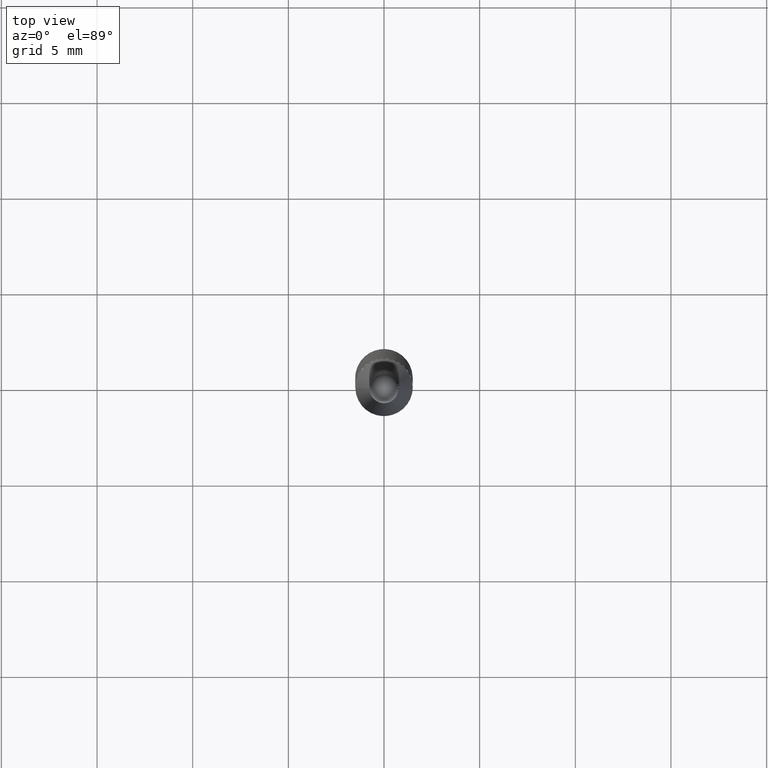
[diagram: clean part render]
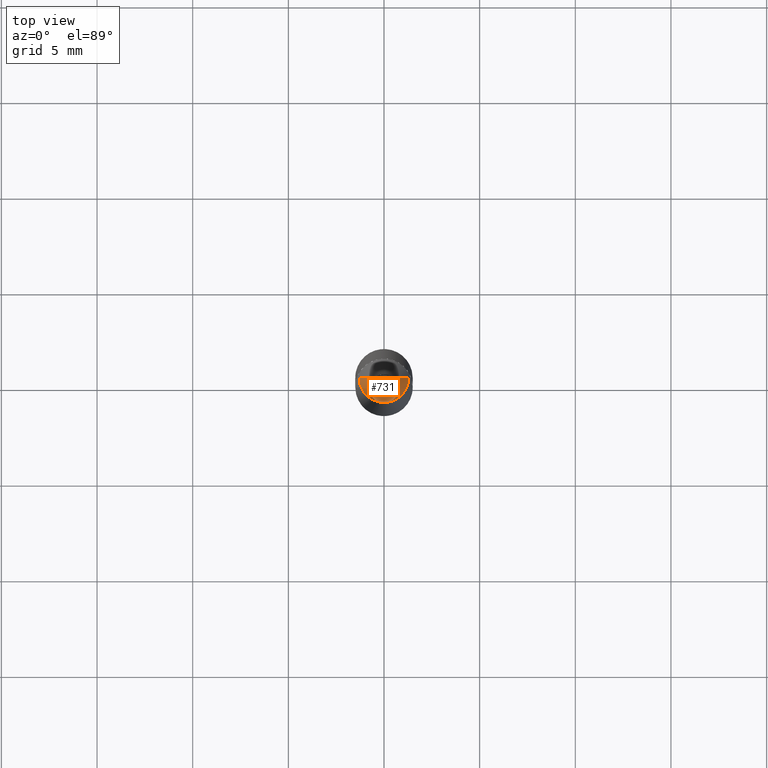
[diagram: same view with one face highlighted and labeled with its STEP entity id]
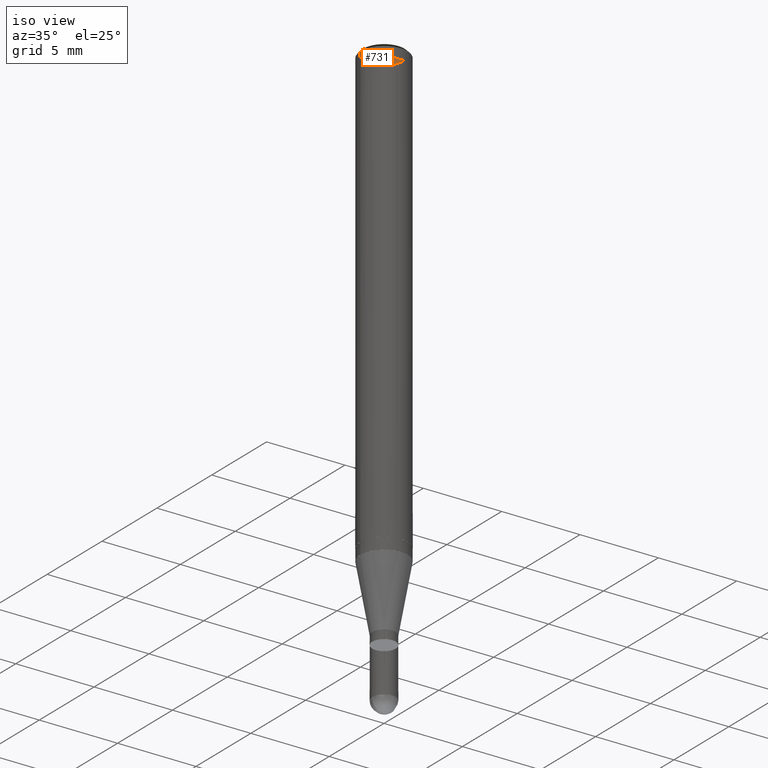
[diagram: same view with one face highlighted and labeled with its STEP entity id]
A machine part, top view. The second image highlights one B-rep face of the part: STEP entity #731.
A second angle (iso view) of the same face is appended — the face is thin or edge-on in the first view.
In plain terms, the highlighted face is a freeform B-spline surface patch.
Its self-contained STEP definition (entity closure, byte-faithful):
#334=CARTESIAN_POINT('',(1.3,0.0,28.5));
#338=CARTESIAN_POINT('',(-1.3,0.0,28.5));
#339=CARTESIAN_POINT('',(0.0,0.0,28.5));
#352=CARTESIAN_POINT('',(-1.3,-1.3,28.5));
#353=CARTESIAN_POINT('',(0.0,-1.3,28.5));
#354=CARTESIAN_POINT('',(1.3,-1.3,28.5));
#716=(
BOUNDED_SURFACE()
B_SPLINE_SURFACE(1,2,(
(#338,#352,#353,#354,#334),
(#339,#339,#339,#339,#339)
), .UNSPECIFIED.,.F.,.F.,.F.)
B_SPLINE_SURFACE_WITH_KNOTS((2,2),(3,2,3),(
0.0,1.0),(
0.0,0.5,1.0), .UNSPECIFIED.)
GEOMETRIC_REPRESENTATION_ITEM()
RATIONAL_B_SPLINE_SURFACE(((1.0,0.707106781187,1.0,0.707106781187,1.0),
(1.0,0.707106781187,1.0,0.707106781187,1.0)
))
REPRESENTATION_ITEM('')
SURFACE()
);
#717=(
BOUNDED_CURVE()
B_SPLINE_CURVE(2,(#334,#354,#353,#352,#338),.UNSPECIFIED.,.F.,.F.)
B_SPLINE_CURVE_WITH_KNOTS((3,2,3),
(0.0,0.5,1.0),.UNSPECIFIED.)
CURVE()
GEOMETRIC_REPRESENTATION_ITEM()
RATIONAL_B_SPLINE_CURVE((1.0,0.707106781187,1.0,0.707106781187,1.0))
REPRESENTATION_ITEM('')
);
#718=(
BOUNDED_CURVE()
B_SPLINE_CURVE(1,(#338,#339),.UNSPECIFIED.,.F.,.F.)
B_SPLINE_CURVE_WITH_KNOTS((2,2),
(0.0,1.0),.UNSPECIFIED.)
CURVE()
GEOMETRIC_REPRESENTATION_ITEM()
RATIONAL_B_SPLINE_CURVE((1.0,1.0))
REPRESENTATION_ITEM('')
);
#719=(
BOUNDED_CURVE()
B_SPLINE_CURVE(1,(#339,#334),.UNSPECIFIED.,.F.,.F.)
B_SPLINE_CURVE_WITH_KNOTS((2,2),
(0.0,1.0),.UNSPECIFIED.)
CURVE()
GEOMETRIC_REPRESENTATION_ITEM()
RATIONAL_B_SPLINE_CURVE((1.0,1.0))
REPRESENTATION_ITEM('')
);
#720=VERTEX_POINT('',#334);
#721=VERTEX_POINT('',#338);
#722=VERTEX_POINT('',#339);
#723=EDGE_CURVE('',#720,#721,#717,.T.);
#724=EDGE_CURVE('',#721,#722,#718,.T.);
#725=EDGE_CURVE('',#722,#720,#719,.T.);
#726=ORIENTED_EDGE('',*,*,#723,.T.);
#727=ORIENTED_EDGE('',*,*,#724,.T.);
#728=ORIENTED_EDGE('',*,*,#725,.T.);
#729=EDGE_LOOP('',(#726,#727,#728));
#730=FACE_OUTER_BOUND('',#729,.T.);
#731=ADVANCED_FACE('',(#730),#716,.T.);